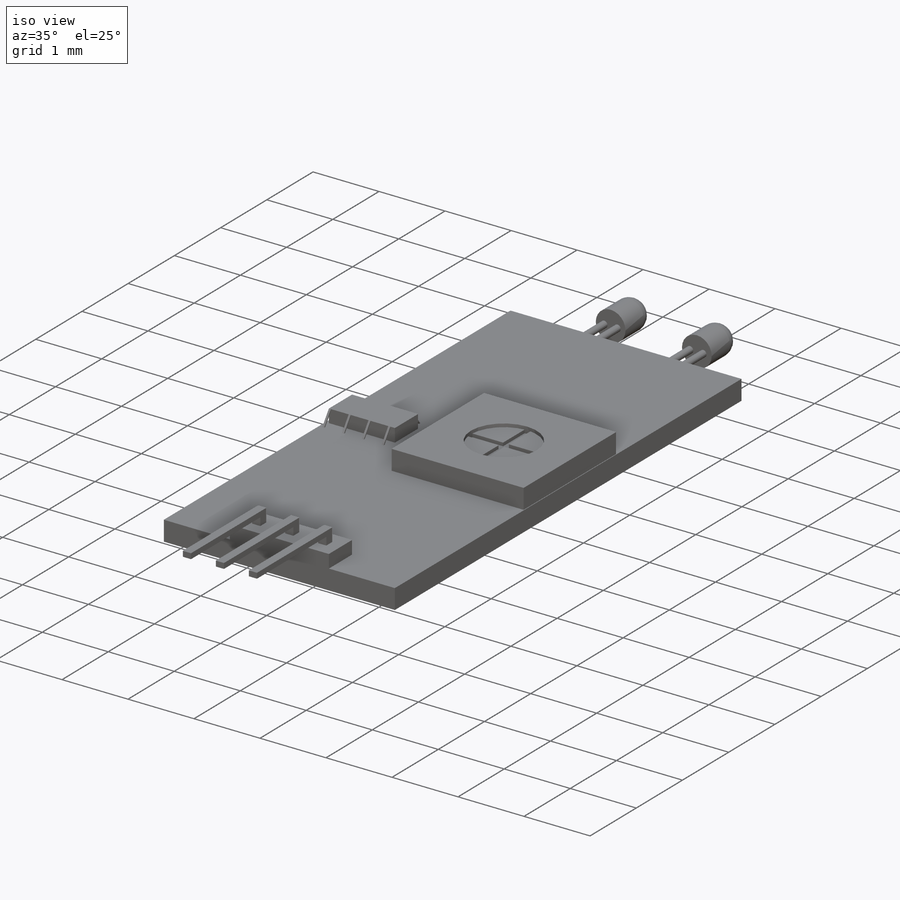
[diagram: iso view]
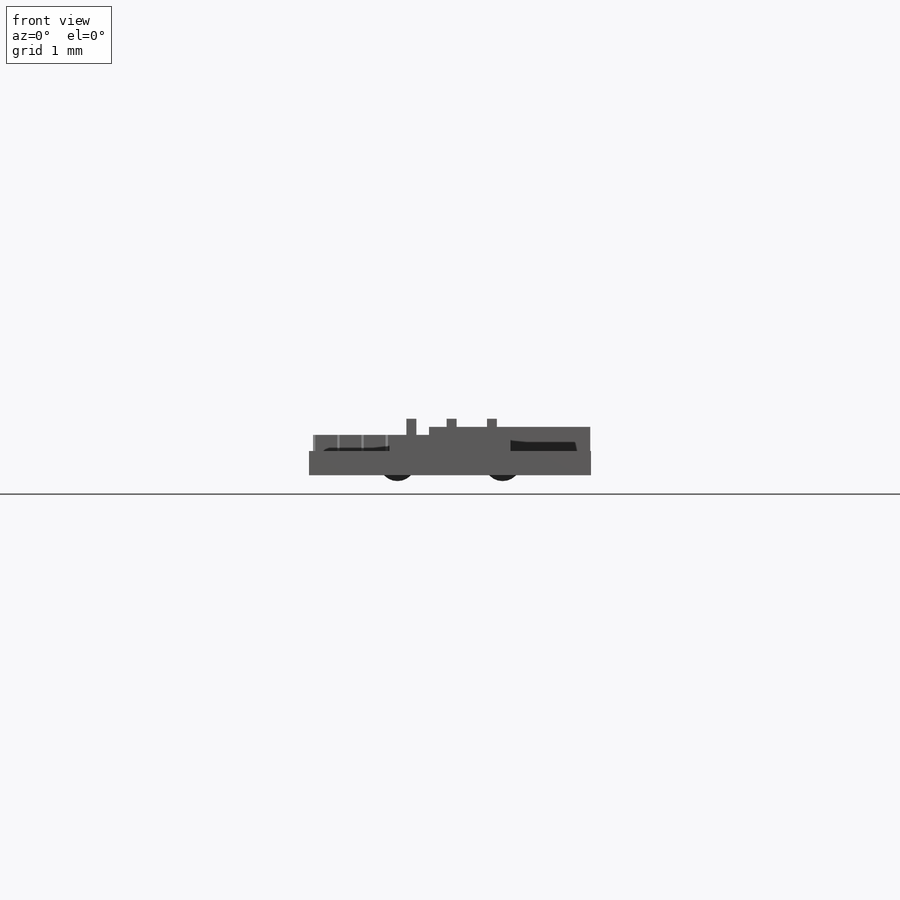
[diagram: front view]
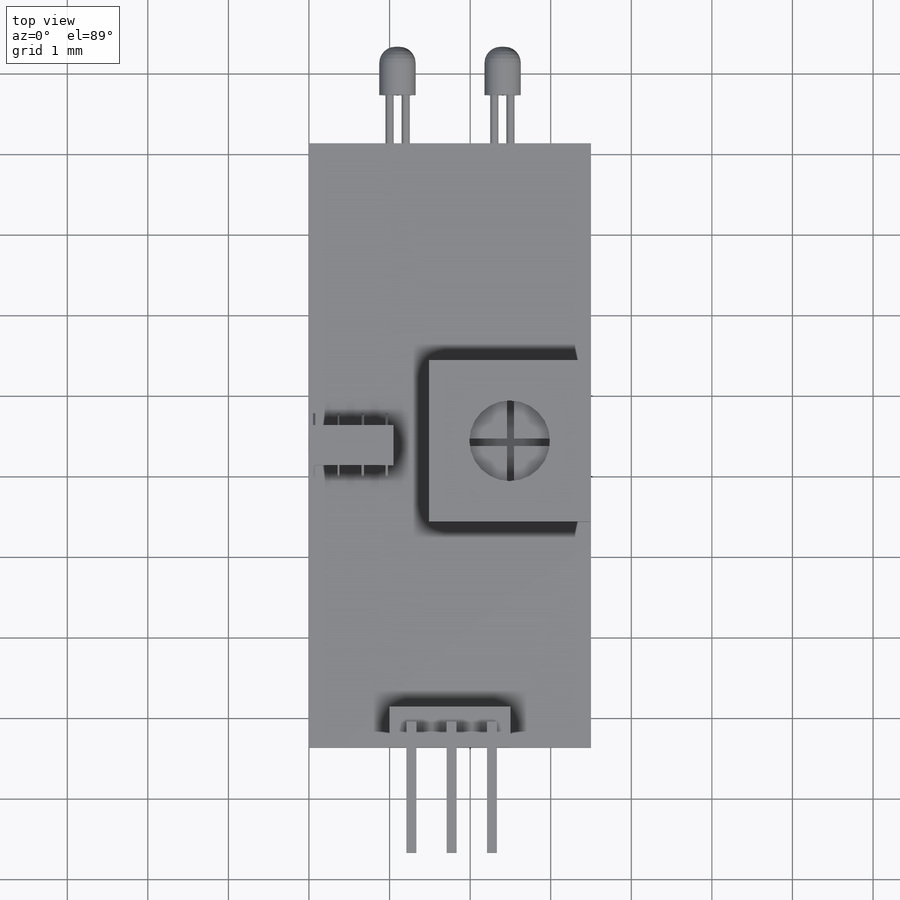
[diagram: top view]
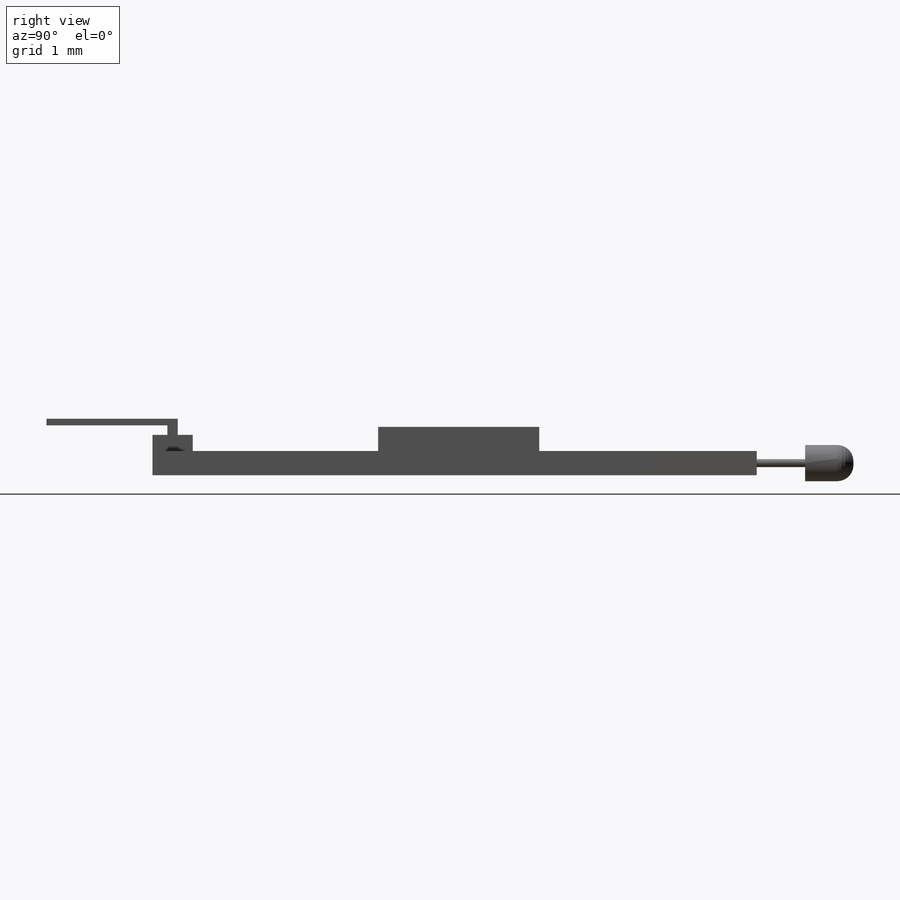
[diagram: right view]
SOLIDWORKS PART (.sldprt)
format: sldprt  version: not decoded by parser v0  size: 431,104 bytes
history: native  units: mm
features: sketch x11, extrude x9, cut_extrude x2, pattern_linear x2, material x1, fillet x1 (+13 scaffold rows collapsed)
feature tree (39):
  scaffold x13  (default folders/planes/origin — collapsed)
  material  "Material <not specified>"
  sketch  "Sketch1"  dims[D1=3.5mm D2=7.5mm]
  extrude  "Boss-Extrude1"  Depth=0.3mm
  sketch  "Sketch2"  dims[D1=2.0mm D2=0.01mm D3=2.8mm]
  extrude  "Boss-Extrude2"  Depth=0.3mm
  sketch  "Sketch5"  dims[D1=1.0mm D2=1.0mm D3=1.0mm]
  cut_extrude  "Cut-Extrude3"  Depth=0.05mm
  sketch  "Sketch6"
  cut_extrude  "Cut-Extrude4"  Depth=0.05mm
  sketch  "Sketch7"  dims[D3=0.1mm D4=0.1mm D5=0.1mm D6=0.1mm D1=0.2mm D2=1.0mm D7=0.15mm D8=0.15mm D9=0.15mm D10=0.15mm D11=1.0mm D12=0.2mm]
  extrude  "Boss-Extrude3"  Depth=0.6mm
  sketch  "Sketch8"  dims[D1=0.45mm D2=0.45mm]
  extrude  "Boss-Extrude4"  Depth=0.6mm
  fillet  "Fillet2"  Radius=0.2mm
  sketch  "Sketch9"  dims[D1=1.0mm D2=0.5mm D3=3.5mm D4=0.05mm]
  extrude  "Boss-Extrude5"  Depth=0.2mm
  sketch  "Sketch10"  dims[c1.D1=~0.249556mm c1.D2=~0.022938mm c1.D3=~0.246508mm c1.D4=~0.021472mm c1.D5=~0.12632mm c2.D5=~53.266218deg c3.D5=~0.209777mm c4.D5=~54.226401deg]
  extrude  "Boss-Extrude6"  Depth=0.03mm
  pattern_linear  "LPattern1"  Count1=4 Count2=1 Spacing1=0.3mm Spacing2=10mm
  sketch  "Sketch11"  dims[D1=1.0mm D2=0.5mm D3=0.5mm D4=0.5mm D5=0.5mm]
  extrude  "Boss-Extrude7"  Depth=0.2mm
  sketch  "Sketch12"
  extrude  "Boss-Extrude8"  Depth=0.2mm
  pattern_linear  "LPattern2"  Count1=3 Count2=1 Spacing1=0.5mm Spacing2=10mm
  sketch  "Sketch13"
  extrude  "Boss-Extrude9"  Depth=1.5mm
decode coverage: 22 of 25 modeling features carry decoded parameters
note: ~ marks probable driven/reference dimensions
note: suppression state not decoded; provenance and decode notes live in map.json
